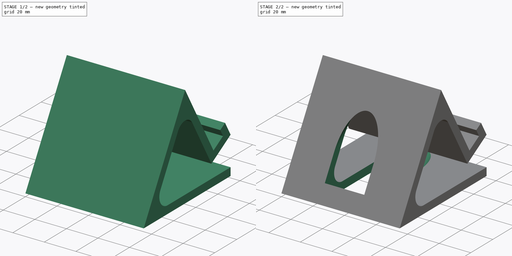
[diagram: build sequence overview — one tinted view per stage of 2, left to right]
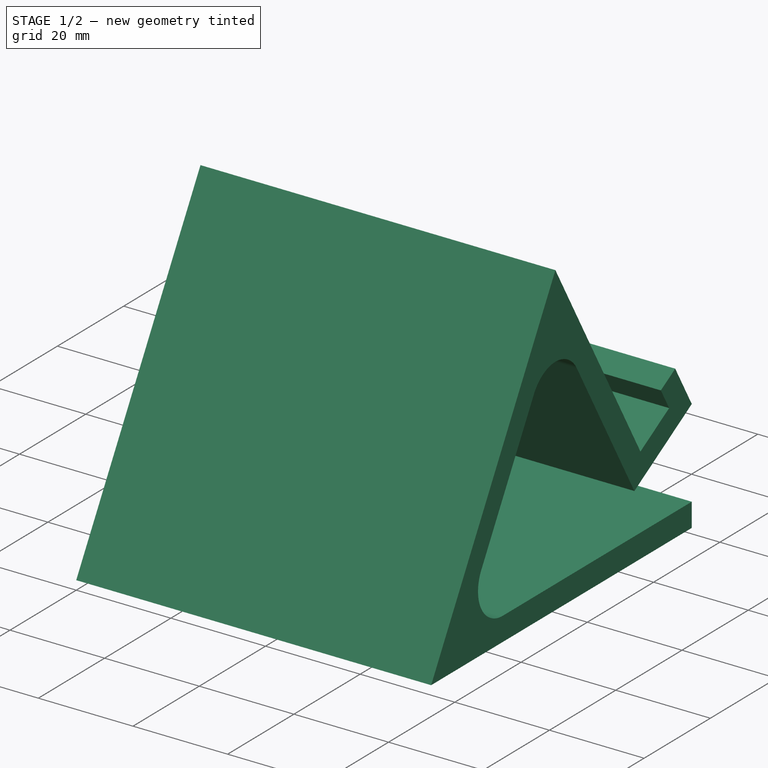
[diagram: stage 1 of 2 — iso view after this stage's code; geometry added in this stage tinted green]
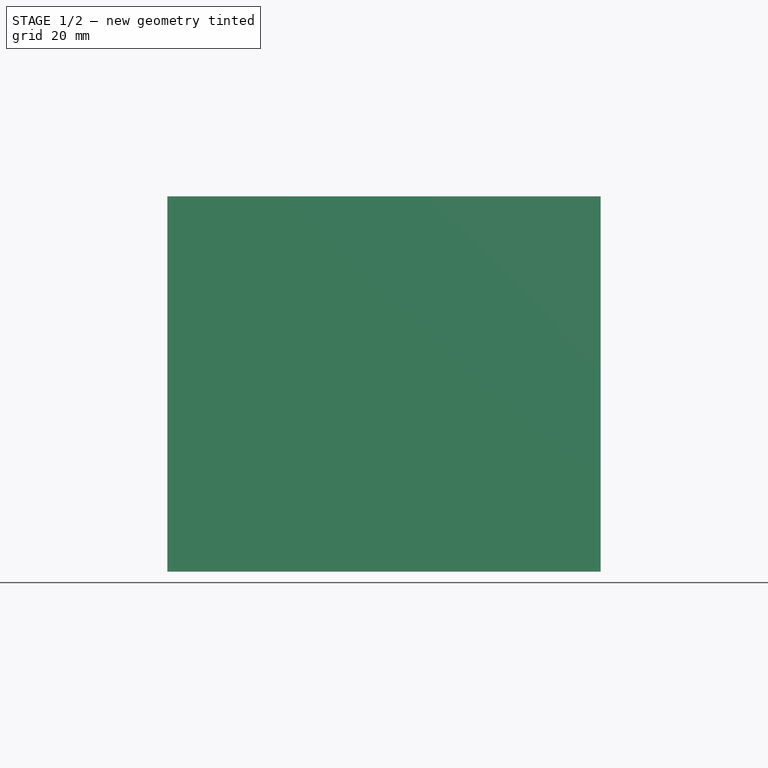
[diagram: stage 1 of 2 — front view after this stage's code; geometry added in this stage tinted green]
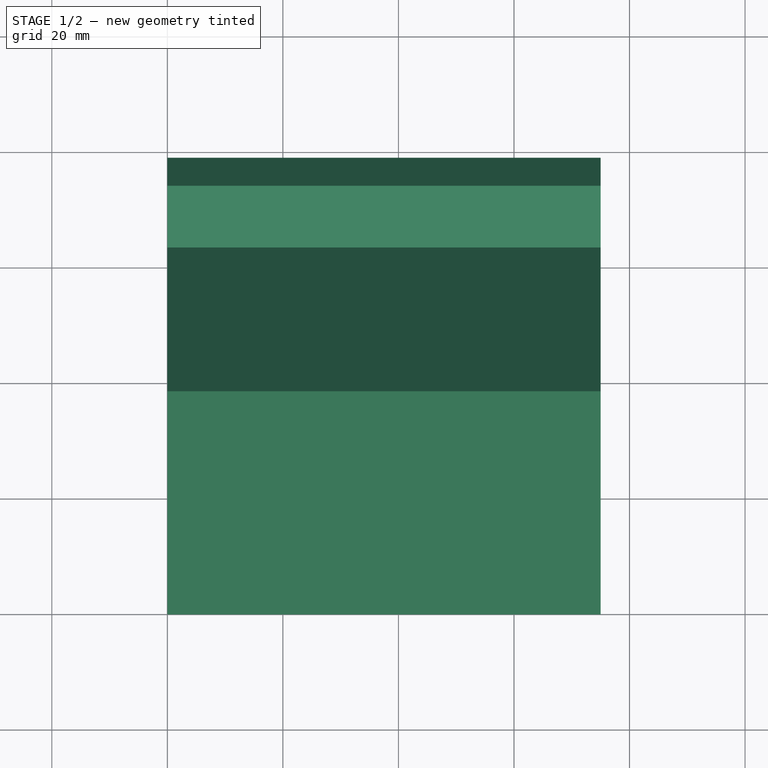
[diagram: stage 1 of 2 — top view after this stage's code; geometry added in this stage tinted green]
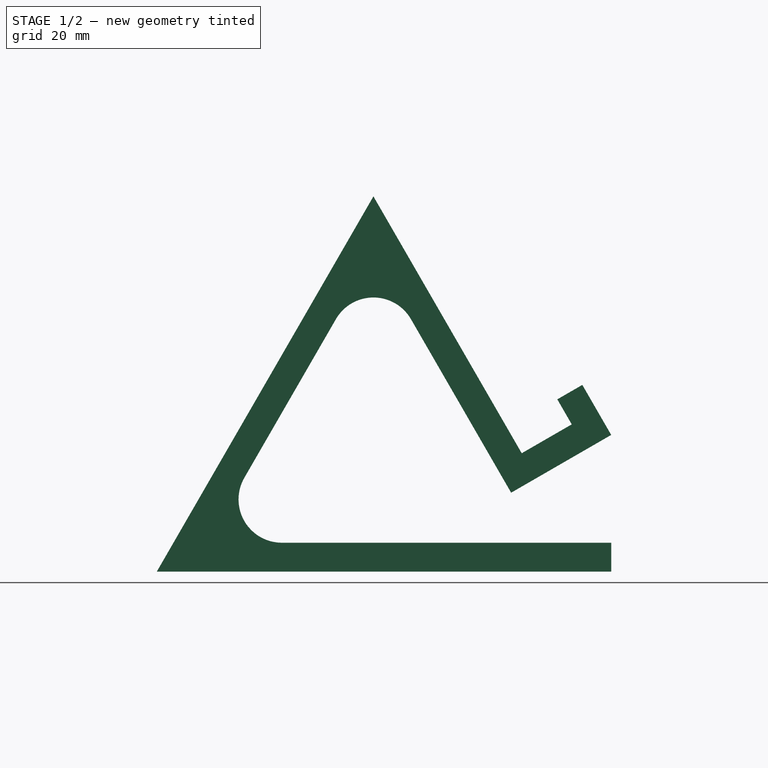
[diagram: stage 1 of 2 — right view after this stage's code; geometry added in this stage tinted green]
FCSTD DOCUMENT  (FreeCAD 0.21R33694 (Git))
Label: hanna_starter
License: All rights reserved
LicenseURL: https://en.wikipedia.org/wiki/All_rights_reserved
objects: Sketcher::SketchObject×2, PartDesign::Pad×1, PartDesign::Plane×1, PartDesign::Pocket×1, PartDesign::Body×1
note: 8 computed .brp shape members not serialized (recipe doc carries the construction recipe); baked Part::Feature solids carry a one-line shape summary decoded from their .brp

FEATURE [Sketcher::SketchObject] Sketch
  FullyConstrained = false
  MapMode = 5
  Placement = pos=(0,0,0) rot=(0.57735,0.57735,0.57735;2.0944rad)
  Support = -> [YZ_Plane]
  sketch-geometry (17):
    g0: LineSegment StartX=0 StartY=0 StartZ=0 EndX=37.5 EndY=64.9519 EndZ=0
    g1: LineSegment StartX=37.5 StartY=64.9519 StartZ=0 EndX=63.1699 EndY=20.4904 EndZ=0
    g2: LineSegment StartX=21.6506 StartY=5 StartZ=0 EndX=66.3397 EndY=5 EndZ=0
    g3: LineSegment StartX=15.1554 StartY=16.25 StartZ=0 EndX=31.0048 EndY=43.7019 EndZ=0
    g4: LineSegment StartX=43.9952 StartY=43.7019 StartZ=0 EndX=61.3397 EndY=13.6603 EndZ=0
    g5: LineSegment StartX=61.3397 StartY=13.6603 StartZ=0 EndX=78.6603 EndY=23.6603 EndZ=0
    g6: LineSegment StartX=78.6603 StartY=23.6603 StartZ=0 EndX=73.6603 EndY=32.3205 EndZ=0
    g7: LineSegment StartX=73.6603 StartY=32.3205 StartZ=0 EndX=69.3301 EndY=29.8205 EndZ=0
    g8: LineSegment StartX=69.3301 StartY=29.8205 StartZ=0 EndX=71.8301 EndY=25.4904 EndZ=0
    g9: LineSegment StartX=71.8301 StartY=25.4904 StartZ=0 EndX=63.1699 EndY=20.4904 EndZ=0
    g10: ArcOfCircle CenterX=21.6506 CenterY=12.5 CenterZ=0 NormalX=0 NormalY=0 NormalZ=1 AngleXU=0 Radius=7.5 StartAngle=2.61799 EndAngle=4.71239
    g11: GeomPoint X=8.66025 Y=5 Z=0
    g12: ArcOfCircle CenterX=37.5 CenterY=39.9519 CenterZ=0 NormalX=0 NormalY=0 NormalZ=1 AngleXU=0 Radius=7.5 StartAngle=0.523599 EndAngle=2.61799
    g13: GeomPoint X=37.5 Y=54.9519 Z=0
    g14: LineSegment StartX=78.6603 StartY=5 StartZ=0 EndX=78.6603 EndY=0 EndZ=0
    g15: LineSegment StartX=66.3397 StartY=5 StartZ=0 EndX=78.6603 EndY=5 EndZ=0
    g16: LineSegment StartX=0 StartY=0 StartZ=0 EndX=78.6603 EndY=0 EndZ=0
  constraints (40):
    c: Coincident(g16,g-1)
    c: Coincident(g0,g16)
    c: Distance(g0,g16) = 75
    c: Coincident(g1,g0)
    c: Angle(g0,g1) = 1.0472
    c: Horizontal(g2)
    c: Parallel(g0,g3)
    c: Parallel(g1,g4)
    c: Distance(g11,g0) = 5
    c: Distance(g2,g1) = 5
    c: Coincident(g6,g5)
    c: Coincident(g8,g7)
    c: Coincident(g9,g8)
    c: Perpendicular(g6,g5)
    c: Perpendicular(g9,g8)
    c: Perpendicular(g8,g7)
    c: Distance(g9,g5) = 5
    c: Distance(g8,g6) = 5
    c: Distance(g7,g8) = 5
    c: Distance(g8,g1) = 10
    c: Coincident(g6,g7)
    c: Distance(g5,g2) = 10
    c: PointOnObject(g11,g3)
    c: PointOnObject(g11,g2)
    c: Tangent(g3,g10) = 1.5708
    c: Tangent(g2,g10) = -1.5708
    c: Distance(g16,g10) = 25
    c: PointOnObject(g13,g3)
    c: PointOnObject(g13,g4)
    c: Tangent(g3,g12) = 1.5708
    c: Tangent(g4,g12) = 1.5708
    c: Distance(g0,g12) = 25
    c: Coincident(g15,g2)
    c: Horizontal(g15)
    c: Coincident(g14,g15)
    c: Perpendicular(g4,g5) = 1.5708
    c: Parallel(g16,g2)
    c: Distance(g11,g16) = 5
    c: Perpendicular(g16,g14) = 4.71239
    c: Perpendicular(g1,g9) = 4.71239
FEATURE [PartDesign::Pad] Pad
  Direction = (1,-2e-16,3e-16)
  Length = 75
  Length2 = 10
  Placement = pos=(0,0,0) rot=(1,1,1;2.0944rad)
  Profile = -> Sketch
  ReferenceAxis = -> Sketch [N_Axis]
  Type = 0
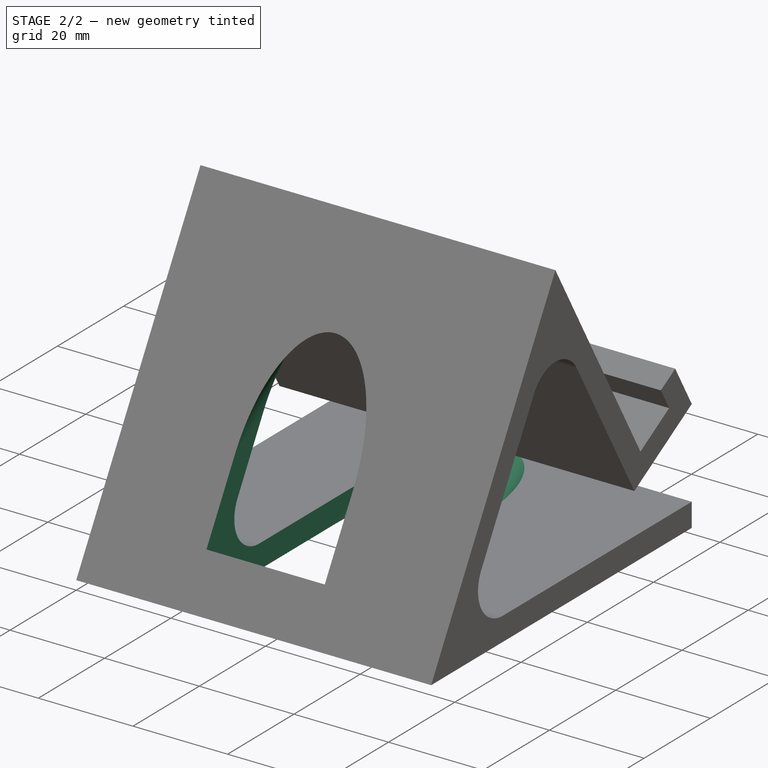
[diagram: stage 2 of 2 — iso view after this stage's code; geometry added in this stage tinted green]
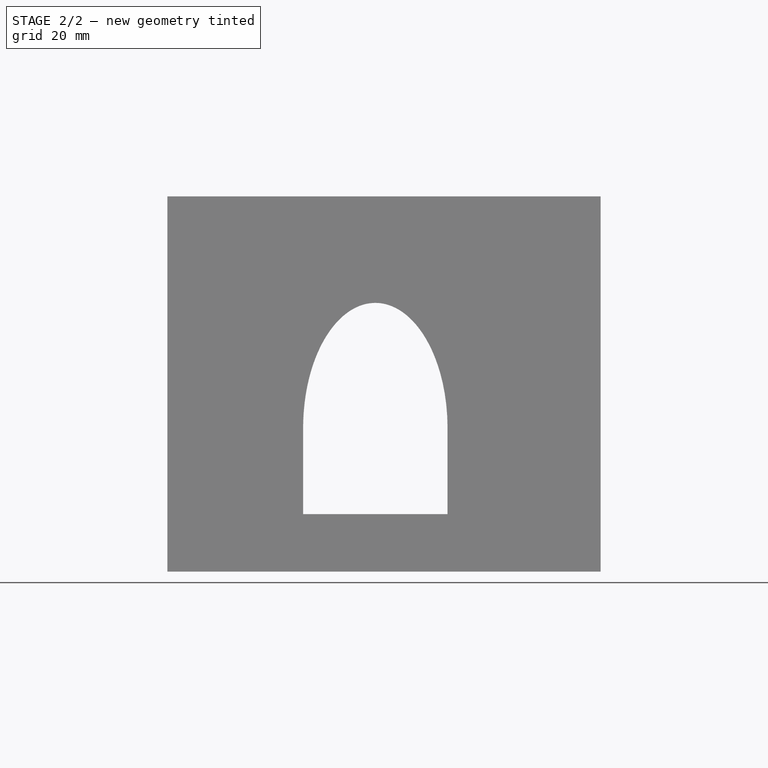
[diagram: stage 2 of 2 — front view after this stage's code; geometry added in this stage tinted green]
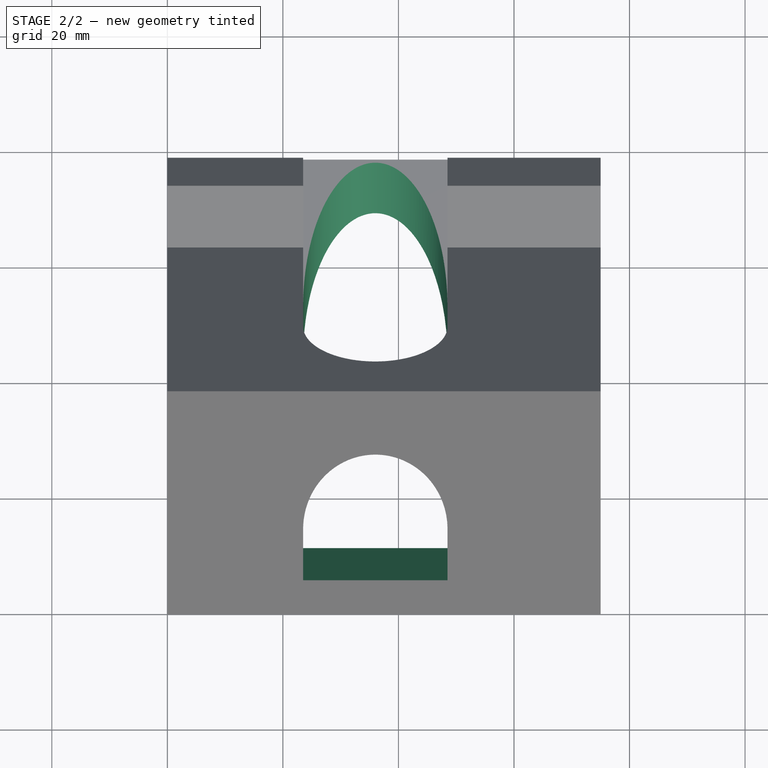
[diagram: stage 2 of 2 — top view after this stage's code; geometry added in this stage tinted green]
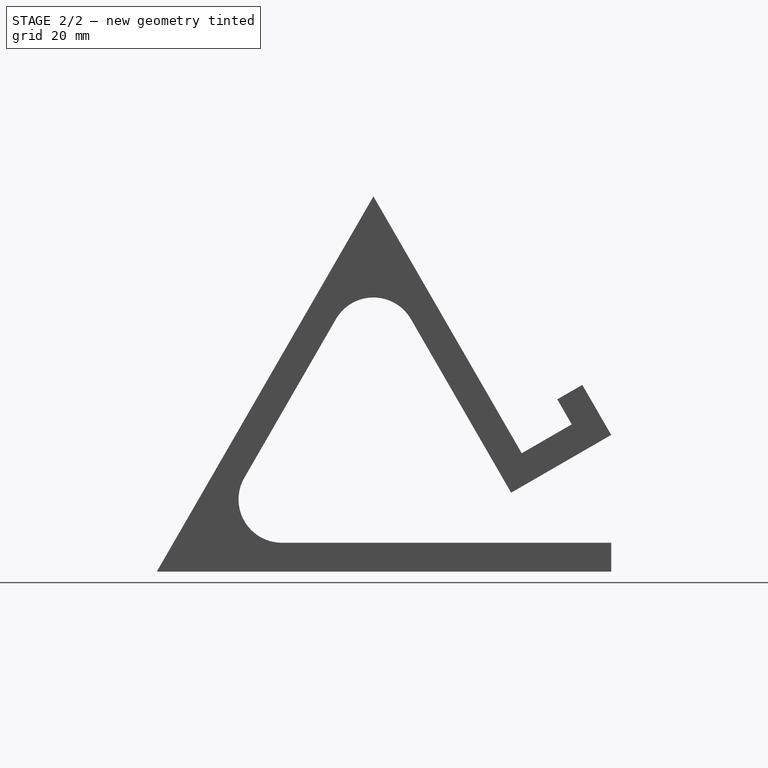
[diagram: stage 2 of 2 — right view after this stage's code; geometry added in this stage tinted green]
FEATURE [PartDesign::Plane] DatumPlane
  Length = 152.511
  MapMode = 5
  Placement = pos=(1.52e-14,69.2404,39.976) rot=(-0.447214,-0.447214,-0.774597;1.82348rad)
  ResizeMode = 0
  Support = -> [Pad]
  Width = 122.78
FEATURE [Sketcher::SketchObject] Sketch001
  FullyConstrained = false
  MapMode = 5
  Placement = pos=(1.52e-14,69.2404,39.976) rot=(-0.447214,-0.447214,-0.774597;1.82348rad)
  Support = -> [DatumPlane]
  sketch-geometry (4):
    g0: ArcOfCircle CenterX=14.3544 CenterY=36 CenterZ=0 NormalX=0 NormalY=0 NormalZ=1 AngleXU=0 Radius=12.5 StartAngle=4.71239 EndAngle=7.85398
    g1: ArcOfCircle CenterX=-22.232 CenterY=36 CenterZ=0 NormalX=0 NormalY=0 NormalZ=1 AngleXU=0 Radius=12.5 StartAngle=1.5708 EndAngle=4.71239
    g2: LineSegment StartX=14.3544 StartY=48.5 StartZ=0 EndX=-22.232 EndY=48.5 EndZ=0
    g3: LineSegment StartX=-22.232 StartY=23.5 StartZ=0 EndX=14.3544 EndY=23.5 EndZ=0
  constraints (7):
    c: Tangent(g0,g2) = -1.5708
    c: Tangent(g2,g1) = -1.5708
    c: Tangent(g1,g3) = -1.5708
    c: Tangent(g3,g0) = -1.5708
    c: Equal(g0,g1)
    c: Horizontal(g2)
    c: Distance(g0,g3) = 25
FEATURE [PartDesign::Pocket] Pocket
  BaseFeature = -> Pad
  Direction = (-2e-16,-0.866025,-0.5)
  Length = 70
  Length2 = 5
  Placement = pos=(0,0,0) rot=(1,1,1;2.0944rad)
  Profile = -> Sketch001
  ReferenceAxis = -> Sketch001 [N_Axis]
  Type = 0
FEATURE [PartDesign::Body] Body
  Group = -> [Sketch,Pad,DatumPlane,Sketch001,Pocket]
  Origin = -> Origin
  Tip = -> Pocket
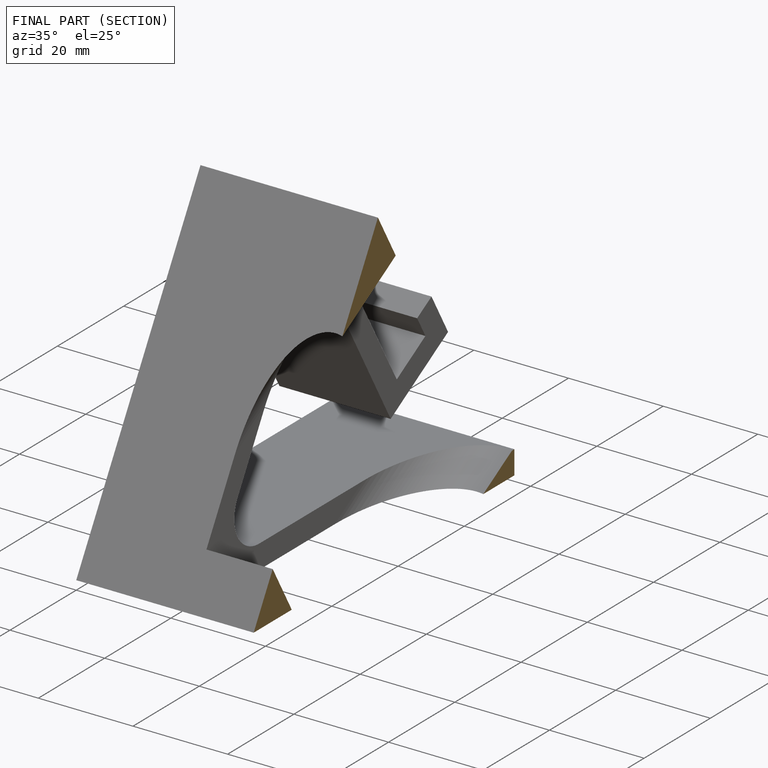
[diagram: finished part — half-section view (interior)]
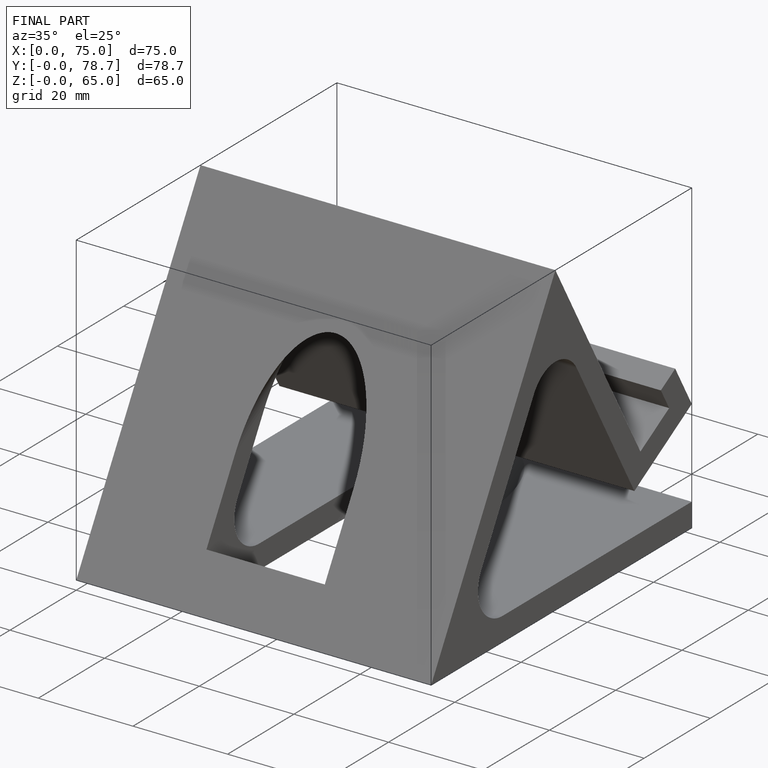
[diagram: finished part — iso view with bounding-box wireframe]
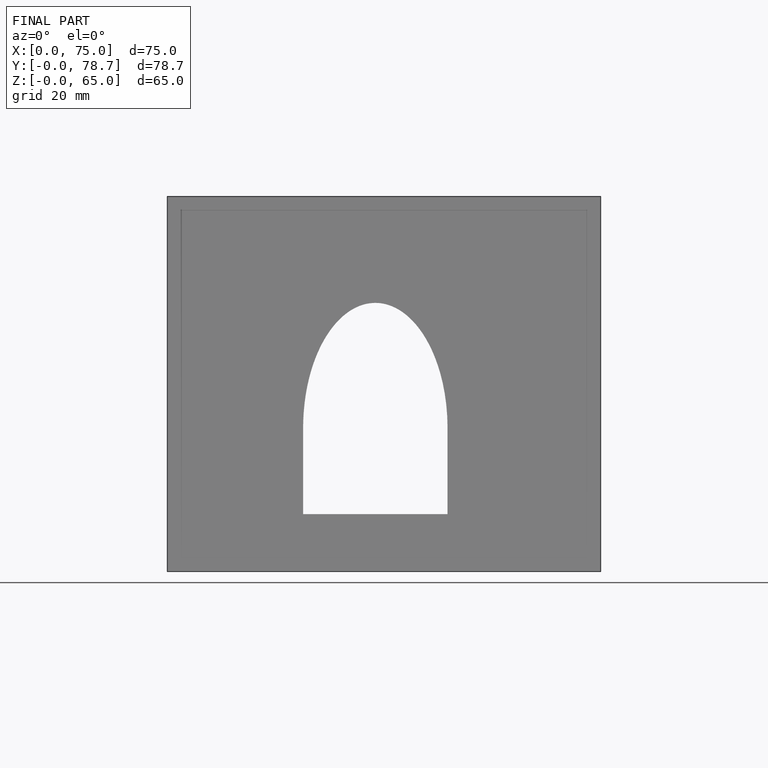
[diagram: finished part — front view with bounding-box wireframe]
